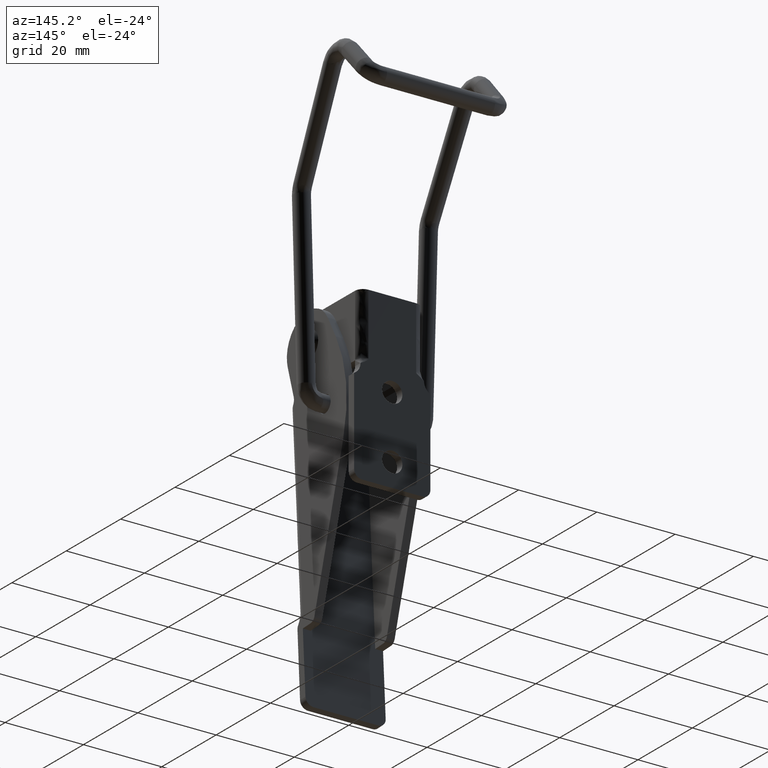
[diagram: clean part render]
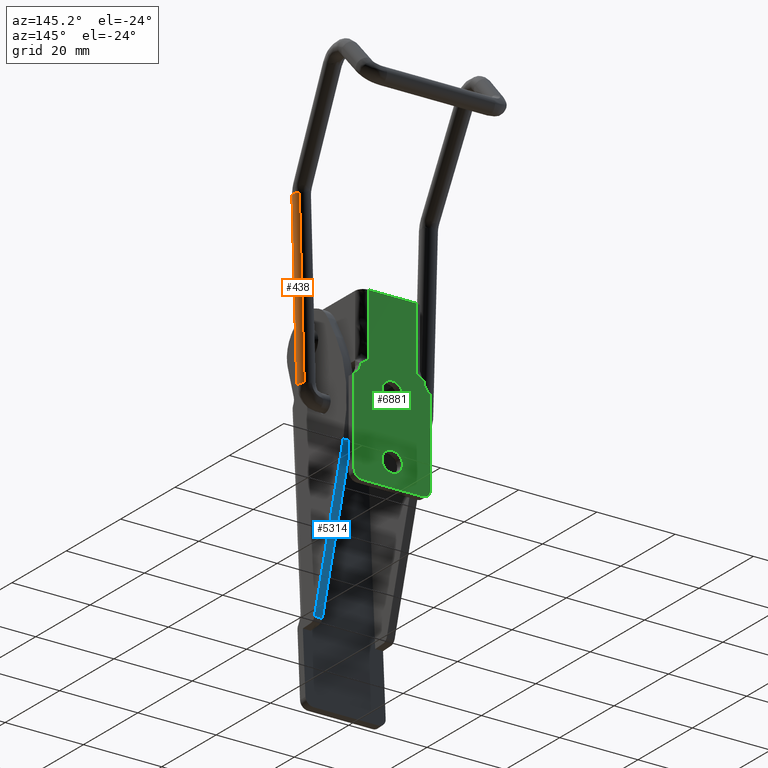
[diagram: same view with three faces highlighted in distinct colors, each labeled with its STEP entity id]
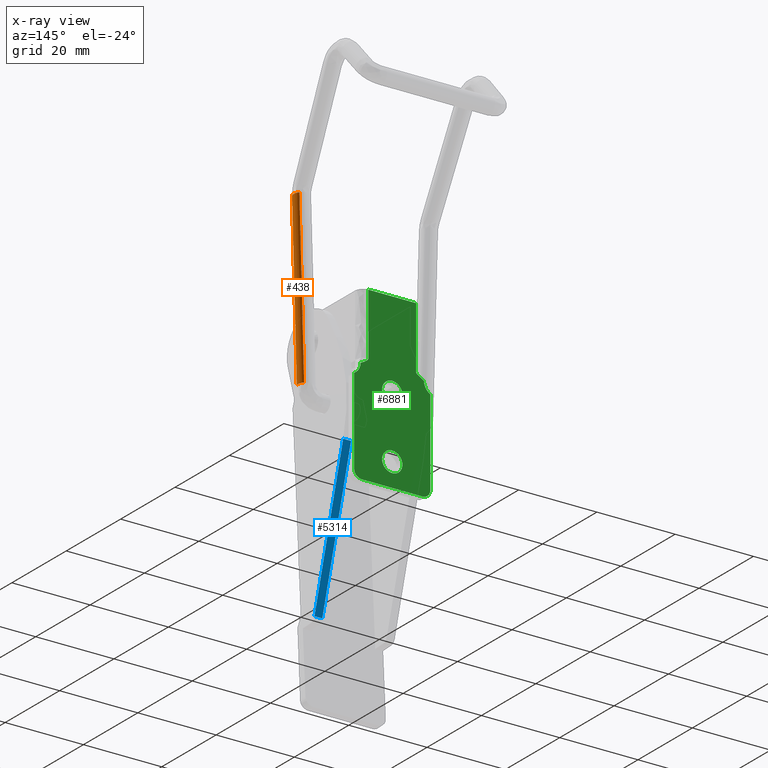
[diagram: x-ray of the same camera — body ghosted, the three highlighted faces saturated]
A machine part, auxiliary view with three faces highlighted in distinct colors.
The next image is the same camera in x-ray (body ghosted, the three faces saturated) — at least one of them is partly hidden behind the body in this view.
Their STEP definitions:

[orange] entity #438 — the highlighted face is a freeform B-spline surface patch.
#265=CARTESIAN_POINT('',(16.509794727899390,4.647320530890150,-12.794704014818301));
#266=VERTEX_POINT('',#265);
#276=CARTESIAN_POINT('',(17.730342286220370,4.647320811614299,30.560491466773581));
#277=VERTEX_POINT('',#276);
#278=CARTESIAN_POINT('',(17.730342286220370,4.647320811614299,30.560491466773581));
#279=CARTESIAN_POINT('',(16.509794727899390,4.647320530890150,-12.794704014818301));
#280=QUASI_UNIFORM_CURVE('',1,(#278,#279),.UNSPECIFIED.,.F.,.U.);
#281=EDGE_CURVE('',#277,#266,#280,.T.);
#321=CARTESIAN_POINT('',(17.692509661454100,7.307180029459488,30.561556540779730));
#322=VERTEX_POINT('',#321);
#332=CARTESIAN_POINT('',(16.471962941733882,7.307180449391282,-12.793638963551690));
#333=VERTEX_POINT('',#332);
#334=CARTESIAN_POINT('',(17.692509661454100,7.307180029459488,30.561556540779730));
#335=CARTESIAN_POINT('',(16.471962941733882,7.307180449391282,-12.793638963551690));
#336=QUASI_UNIFORM_CURVE('',1,(#334,#335),.UNSPECIFIED.,.F.,.U.);
#337=EDGE_CURVE('',#322,#333,#336,.T.);
#376=CARTESIAN_POINT('',(17.723023971583569,7.307180415229979,31.645436411130341));
#377=CARTESIAN_POINT('',(18.925762396597211,5.994101715955565,31.611576590189241));
#378=CARTESIAN_POINT('',(17.760855860629299,4.647320685993249,31.644371357447586));
#379=CARTESIAN_POINT('',(16.440686447903740,7.307180415229979,-13.904615854346760));
#380=CARTESIAN_POINT('',(17.643424872917382,5.994101715955565,-13.938475675287856));
#381=CARTESIAN_POINT('',(16.478518336949474,4.647320685993249,-13.905680908029522));
#389=(BOUNDED_SURFACE()B_SPLINE_SURFACE(2,1,((#376,#379),(#377,#380),(#378,#381)),.UNSPECIFIED.,.F.,.F.,.U.)B_SPLINE_SURFACE_WITH_KNOTS((3,3),(2,2),(0.0,3.045267912687113),(0.0,45.568099048702187),.UNSPECIFIED.)GEOMETRIC_REPRESENTATION_ITEM()RATIONAL_B_SPLINE_SURFACE(((1.0,1.0),(0.730538238691624,0.730538238691624),(0.956886118190660,0.956886118190660)))REPRESENTATION_ITEM('')SURFACE());
#390=CARTESIAN_POINT('',(16.997200202101990,5.955999999998631,-12.808425586992520));
#391=VERTEX_POINT('',#390);
#392=CARTESIAN_POINT('',(16.509794727899390,4.647320530890150,-12.794704014818301));
#393=CARTESIAN_POINT('',(16.694817788622331,4.860640249849205,-12.799912834258510));
#394=CARTESIAN_POINT('',(16.927835161842911,5.287273870870949,-12.806472802811889));
#395=CARTESIAN_POINT('',(16.997262726879129,5.762813143985635,-12.808427346965980));
#396=CARTESIAN_POINT('',(16.997200202101990,5.955999999998631,-12.808425586992520));
#397=B_SPLINE_CURVE_WITH_KNOTS('',3,(#392,#393,#394,#395,#396),.UNSPECIFIED.,.F.,.U.,(4,1,4),(0.000000054343710,0.847068776800026,1.426647840448905),.UNSPECIFIED.);
#398=EDGE_CURVE('',#266,#391,#397,.T.);
#399=ORIENTED_EDGE('',*,*,#398,.T.);
#400=CARTESIAN_POINT('',(16.997200202101990,5.955999999998631,-12.808425586992520));
#401=CARTESIAN_POINT('',(16.997485135419801,6.218745615721096,-12.808433607971351));
#402=CARTESIAN_POINT('',(16.898281266147400,6.712997775263919,-12.805640792937460));
#403=CARTESIAN_POINT('',(16.628642231258318,7.136368932709130,-12.798049841413960));
#404=CARTESIAN_POINT('',(16.471962941733882,7.307180449391282,-12.793638963551690));
#405=B_SPLINE_CURVE_WITH_KNOTS('',3,(#400,#401,#402,#403,#404),.UNSPECIFIED.,.F.,.U.,(4,1,4),(0.000000066028640,0.788122806032528,1.483563117244807),.UNSPECIFIED.);
#406=EDGE_CURVE('',#391,#333,#405,.T.);
#407=ORIENTED_EDGE('',*,*,#406,.T.);
#408=ORIENTED_EDGE('',*,*,#337,.F.);
#409=CARTESIAN_POINT('',(18.217747517759520,5.955999999998660,30.546769901059829));
#410=VERTEX_POINT('',#409);
#411=CARTESIAN_POINT('',(18.217747517759520,5.955999999998660,30.546769901059829));
#412=CARTESIAN_POINT('',(18.217811127245380,6.156892329705192,30.546768110308179));
#413=CARTESIAN_POINT('',(18.142706284255741,6.651403481221308,30.548882482380161));
#414=CARTESIAN_POINT('',(17.891189467385910,7.090941664800647,30.555963252568191));
#415=CARTESIAN_POINT('',(17.692509661454100,7.307180029459488,30.561556540779730));
#416=B_SPLINE_CURVE_WITH_KNOTS('',3,(#411,#412,#413,#414,#415),.UNSPECIFIED.,.F.,.U.,(4,1,4),(0.000000065999771,0.602701375701877,1.483562942162717),.UNSPECIFIED.);
#417=EDGE_CURVE('',#410,#322,#416,.T.);
#418=ORIENTED_EDGE('',*,*,#417,.F.);
#419=CARTESIAN_POINT('',(18.043750767621798,5.139933896677237,30.551668305806270));
#420=VERTEX_POINT('',#419);
#421=CARTESIAN_POINT('',(18.043750767621798,5.139933896677237,30.551668305806270));
#422=CARTESIAN_POINT('',(18.158206161004479,5.395702693098189,30.548446125841650));
#423=CARTESIAN_POINT('',(18.217996809580828,5.675754599638357,30.546762882927322));
#424=CARTESIAN_POINT('',(18.217747517759520,5.955999999998660,30.546769901059829));
#425=B_SPLINE_CURVE_WITH_KNOTS('',3,(#421,#422,#423,#424),.UNSPECIFIED.,.F.,.U.,(4,4),(0.000000025153593,0.840621292462146),.UNSPECIFIED.);
#426=EDGE_CURVE('',#420,#410,#425,.T.);
#427=ORIENTED_EDGE('',*,*,#426,.F.);
#428=CARTESIAN_POINT('',(17.730342286220370,4.647320811614299,30.560491466773581));
#429=CARTESIAN_POINT('',(17.858144844535062,4.795013813910116,30.556893534297121));
#430=CARTESIAN_POINT('',(17.964128186463331,4.961563310391812,30.553909862376269));
#431=CARTESIAN_POINT('',(18.043750767621798,5.139933896677237,30.551668305806270));
#432=B_SPLINE_CURVE_WITH_KNOTS('',3,(#428,#429,#430,#431),.UNSPECIFIED.,.F.,.U.,(4,4),(6.360703E-009,0.586028995988566),.UNSPECIFIED.);
#433=EDGE_CURVE('',#277,#420,#432,.T.);
#434=ORIENTED_EDGE('',*,*,#433,.F.);
#435=ORIENTED_EDGE('',*,*,#281,.T.);
#436=EDGE_LOOP('',(#399,#407,#408,#418,#427,#434,#435));
#437=FACE_OUTER_BOUND('',#436,.T.);
#438=ADVANCED_FACE('',(#437),#389,.T.);

[blue] entity #5314 — the highlighted face is a freeform B-spline surface patch.
#4857=CARTESIAN_POINT('',(8.250000000000000,12.716136963234201,-26.090234091220299));
#4858=VERTEX_POINT('',#4857);
#4871=CARTESIAN_POINT('',(8.250000000000000,2.154824201277075,-62.991602269865787));
#4872=VERTEX_POINT('',#4871);
#4873=CARTESIAN_POINT('',(8.250000000000000,12.716136963234201,-26.090234091220299));
#4874=CARTESIAN_POINT('',(8.250000000000000,2.154824201277075,-62.991602269865787));
#4875=QUASI_UNIFORM_CURVE('',1,(#4873,#4874),.UNSPECIFIED.,.F.,.U.);
#4876=EDGE_CURVE('',#4858,#4872,#4875,.T.);
#5099=CARTESIAN_POINT('',(10.250000000000000,2.154824201277075,-62.991602269865787));
#5100=VERTEX_POINT('',#5099);
#5111=CARTESIAN_POINT('',(10.250000000000000,12.716136963234201,-26.090234091220299));
#5112=VERTEX_POINT('',#5111);
#5113=CARTESIAN_POINT('',(10.250000000000000,12.716136963234201,-26.090234091220299));
#5114=CARTESIAN_POINT('',(10.250000000000000,2.154824201277075,-62.991602269865787));
#5115=QUASI_UNIFORM_CURVE('',1,(#5113,#5114),.UNSPECIFIED.,.F.,.U.);
#5116=EDGE_CURVE('',#5112,#5100,#5115,.T.);
#5290=CARTESIAN_POINT('',(10.250000000000000,2.154824201277075,-62.991602269865787));
#5291=CARTESIAN_POINT('',(8.250000000000000,2.154824201277075,-62.991602269865787));
#5292=QUASI_UNIFORM_CURVE('',1,(#5290,#5291),.UNSPECIFIED.,.F.,.U.);
#5293=EDGE_CURVE('',#5100,#4872,#5292,.T.);
#5299=CARTESIAN_POINT('',(8.150100003876389,1.627286191309386,-64.834827139047732));
#5300=CARTESIAN_POINT('',(8.150100003876389,13.243674028946950,-24.247012521277771));
#5301=CARTESIAN_POINT('',(10.349900049767790,1.627286191309386,-64.834827139047732));
#5302=CARTESIAN_POINT('',(10.349900049767790,13.243674028946950,-24.247012521277771));
#5303=B_SPLINE_SURFACE_WITH_KNOTS('',1,1,((#5299,#5301),(#5300,#5302)),.UNSPECIFIED.,.F.,.F.,.U.,(2,2),(2,2),(0.0,42.217427229058792),(0.0,2.199800045891404),.UNSPECIFIED.);
#5304=ORIENTED_EDGE('',*,*,#4876,.F.);
#5305=CARTESIAN_POINT('',(10.250000000000000,12.716136963234201,-26.090234091220299));
#5306=CARTESIAN_POINT('',(8.250000000000000,12.716136963234201,-26.090234091220299));
#5307=QUASI_UNIFORM_CURVE('',1,(#5305,#5306),.UNSPECIFIED.,.F.,.U.);
#5308=EDGE_CURVE('',#5112,#4858,#5307,.T.);
#5309=ORIENTED_EDGE('',*,*,#5308,.F.);
#5310=ORIENTED_EDGE('',*,*,#5116,.T.);
#5311=ORIENTED_EDGE('',*,*,#5293,.T.);
#5312=EDGE_LOOP('',(#5304,#5309,#5310,#5311));
#5313=FACE_OUTER_BOUND('',#5312,.T.);
#5314=ADVANCED_FACE('',(#5313),#5303,.T.);

[green] entity #6881 — the highlighted face is a freeform B-spline surface patch.
#6021=CARTESIAN_POINT('',(0.0,16.0,-11.400000000000000));
#6022=VERTEX_POINT('',#6021);
#6023=CARTESIAN_POINT('',(-1.863292082354252,15.999999999963590,-12.186677256007460));
#6024=VERTEX_POINT('',#6023);
#6025=CARTESIAN_POINT('',(0.0,16.0,-11.400000000000000));
#6026=CARTESIAN_POINT('',(-0.367941319150525,15.999999999992809,-11.399492728401169));
#6027=CARTESIAN_POINT('',(-1.059928778730854,15.999999999979300,-11.549619904516771));
#6028=CARTESIAN_POINT('',(-1.637075674365317,15.999999999968001,-11.953841488596950));
#6029=CARTESIAN_POINT('',(-1.863292082354252,15.999999999963590,-12.186677256007460));
#6030=B_SPLINE_CURVE_WITH_KNOTS('',3,(#6025,#6026,#6027,#6028,#6029),.UNSPECIFIED.,.F.,.U.,(4,1,4),(0.000000070766762,1.103614802133821,2.077423678142815),.UNSPECIFIED.);
#6031=EDGE_CURVE('',#6022,#6024,#6030,.T.);
#6033=CARTESIAN_POINT('',(2.599999999998803,16.0,-13.999997505267141));
#6034=VERTEX_POINT('',#6033);
#6035=CARTESIAN_POINT('',(2.599999999998803,16.0,-13.999997505267141));
#6036=CARTESIAN_POINT('',(2.600118074876720,15.999999999999989,-13.744735147118909));
#6037=CARTESIAN_POINT('',(2.533632415311678,16.000000000000021,-13.298131382723220));
#6038=CARTESIAN_POINT('',(2.230303222298507,16.000000000000011,-12.589835256861990));
#6039=CARTESIAN_POINT('',(1.770706555027725,15.999999999999989,-12.043646003875160));
#6040=CARTESIAN_POINT('',(1.232332315636380,16.0,-11.693710011439320));
#6041=CARTESIAN_POINT('',(0.680595176224685,16.000000000000011,-11.465099799648319));
#6042=CARTESIAN_POINT('',(0.276544971297558,15.999999999999980,-11.399850671934210));
#6043=CARTESIAN_POINT('',(0.0,16.0,-11.400000000000000));
#6044=B_SPLINE_CURVE_WITH_KNOTS('',3,(#6035,#6036,#6037,#6038,#6039,#6040,#6041,#6042,#6043),.UNSPECIFIED.,.F.,.U.,(4,1,1,1,1,1,4),(0.000000225905183,0.765769840458974,1.340121590204038,2.297310064581266,2.871671922412920,3.254585484972335,4.084171529176208),.UNSPECIFIED.);
#6045=EDGE_CURVE('',#6034,#6022,#6044,.T.);
#6047=CARTESIAN_POINT('',(0.0,16.0,-16.600000000000001));
#6048=VERTEX_POINT('',#6047);
#6049=CARTESIAN_POINT('',(0.0,16.0,-16.600000000000001));
#6050=CARTESIAN_POINT('',(0.255261186141787,16.000000000000011,-16.600108173445111));
#6051=CARTESIAN_POINT('',(0.765733101275605,16.0,-16.524239462607650));
#6052=CARTESIAN_POINT('',(1.407186484100455,16.000000000000011,-16.220886281028420));
#6053=CARTESIAN_POINT('',(1.865649041730928,15.999999999999959,-15.834996933055599));
#6054=CARTESIAN_POINT('',(2.199154626694479,16.0,-15.418283983607850));
#6055=CARTESIAN_POINT('',(2.504795129008538,16.000000000000082,-14.829416955779861));
#6056=CARTESIAN_POINT('',(2.600284592956574,15.999999999999890,-14.319109708965140));
#6057=CARTESIAN_POINT('',(2.599999999998803,16.0,-13.999997505267141));
#6058=B_SPLINE_CURVE_WITH_KNOTS('',3,(#6049,#6050,#6051,#6052,#6053,#6054,#6055,#6056,#6057),.UNSPECIFIED.,.F.,.U.,(4,1,1,1,1,1,4),(0.000000222490631,0.765770364679256,1.531594358759263,2.105872248835109,2.552579556360094,3.126947872563255,4.084174341391743),.UNSPECIFIED.);
#6059=EDGE_CURVE('',#6048,#6034,#6058,.T.);
#6061=CARTESIAN_POINT('',(-1.916921610258040,16.000000000034110,-15.756534876094570));
#6062=VERTEX_POINT('',#6061);
#6063=CARTESIAN_POINT('',(-1.916921610258040,16.000000000034110,-15.756534876094570));
#6064=CARTESIAN_POINT('',(-1.689610616523210,16.000000000030109,-16.005154430978369));
#6065=CARTESIAN_POINT('',(-1.302462461254564,16.000000000023132,-16.289531627947142));
#6066=CARTESIAN_POINT('',(-0.628622490213775,16.000000000011241,-16.545159547883870));
#6067=CARTESIAN_POINT('',(-0.247001009635600,16.000000000004341,-16.600112303489649));
#6068=CARTESIAN_POINT('',(0.0,16.0,-16.600000000000001));
#6069=B_SPLINE_CURVE_WITH_KNOTS('',3,(#6063,#6064,#6065,#6066,#6067,#6068),.UNSPECIFIED.,.F.,.U.,(4,1,1,4),(0.000000059354858,1.010421767200837,1.414564382715485,2.155542261296038),.UNSPECIFIED.);
#6070=EDGE_CURVE('',#6062,#6048,#6069,.T.);
#6149=CARTESIAN_POINT('',(-2.599999999998803,16.0,-14.000002494732890));
#6150=VERTEX_POINT('',#6149);
#6151=CARTESIAN_POINT('',(-1.863292082354252,15.999999999963590,-12.186677256007460));
#6152=CARTESIAN_POINT('',(-2.052921634006627,15.999999999967500,-12.381347136871661));
#6153=CARTESIAN_POINT('',(-2.309132975920708,15.999999999974770,-12.744399535558671));
#6154=CARTESIAN_POINT('',(-2.546941551383142,15.999999999987420,-13.372952907986960));
#6155=CARTESIAN_POINT('',(-2.600084415741846,15.999999999995380,-13.770056356247739));
#6156=CARTESIAN_POINT('',(-2.599999999998803,16.0,-14.000002494732890));
#6157=B_SPLINE_CURVE_WITH_KNOTS('',3,(#6151,#6152,#6153,#6154,#6155,#6156),.UNSPECIFIED.,.F.,.U.,(4,1,1,4),(0.000000059649642,0.815259724472347,1.316928201889315,2.006751353417502),.UNSPECIFIED.);
#6158=EDGE_CURVE('',#6024,#6150,#6157,.T.);
#6181=CARTESIAN_POINT('',(-2.599999999998803,16.0,-14.000002494732890));
#6182=CARTESIAN_POINT('',(-2.600226065375181,16.000000000005802,-14.301382255301959));
#6183=CARTESIAN_POINT('',(-2.486900350476761,16.000000000018439,-14.944060903997890));
#6184=CARTESIAN_POINT('',(-2.147963791235973,16.000000000029178,-15.504956197174099));
#6185=CARTESIAN_POINT('',(-1.916921610258040,16.000000000034110,-15.756534876094570));
#6186=B_SPLINE_CURVE_WITH_KNOTS('',3,(#6181,#6182,#6183,#6184,#6185),.UNSPECIFIED.,.F.,.U.,(4,1,4),(0.000000065977171,0.904064395187127,1.928629614510035),.UNSPECIFIED.);
#6187=EDGE_CURVE('',#6150,#6062,#6186,.T.);
#6218=CARTESIAN_POINT('',(0.0,16.0,-27.399999999999999));
#6219=VERTEX_POINT('',#6218);
#6220=CARTESIAN_POINT('',(-1.863292082354253,15.999999999963590,-28.186677256007460));
#6221=VERTEX_POINT('',#6220);
#6222=CARTESIAN_POINT('',(0.0,16.0,-27.399999999999999));
#6223=CARTESIAN_POINT('',(-0.324639040687594,15.999999999993671,-27.399695696798329));
#6224=CARTESIAN_POINT('',(-1.016827318717115,15.999999999980121,-27.531481133912830));
#6225=CARTESIAN_POINT('',(-1.607046281505769,15.999999999968610,-27.922618948879709));
#6226=CARTESIAN_POINT('',(-1.863292082354253,15.999999999963590,-28.186677256007460));
#6227=B_SPLINE_CURVE_WITH_KNOTS('',3,(#6222,#6223,#6224,#6225,#6226),.UNSPECIFIED.,.F.,.U.,(4,1,4),(0.000000070766677,0.973808946776108,2.077423678142820),.UNSPECIFIED.);
#6228=EDGE_CURVE('',#6219,#6221,#6227,.T.);
#6230=CARTESIAN_POINT('',(2.599999999998803,16.0,-29.999997505267139));
#6231=VERTEX_POINT('',#6230);
#6232=CARTESIAN_POINT('',(2.599999999998803,16.0,-29.999997505267139));
#6233=CARTESIAN_POINT('',(2.600276469574768,16.000000000000021,-29.680874469584818));
#6234=CARTESIAN_POINT('',(2.512721940039311,15.999999999999989,-29.213149023835658));
#6235=CARTESIAN_POINT('',(2.203683261018797,16.000000000000011,-28.579953519038039));
#6236=CARTESIAN_POINT('',(1.841536675432757,16.000000000000039,-28.127492926905781));
#6237=CARTESIAN_POINT('',(1.296519277207960,15.999999999999940,-27.712757165463479));
#6238=CARTESIAN_POINT('',(0.680691735149581,16.000000000000110,-27.457664167464699));
#6239=CARTESIAN_POINT('',(0.212704442734100,15.999999999999901,-27.399970272375661));
#6240=CARTESIAN_POINT('',(0.0,16.0,-27.399999999999999));
#6241=B_SPLINE_CURVE_WITH_KNOTS('',3,(#6232,#6233,#6234,#6235,#6236,#6237,#6238,#6239,#6240),.UNSPECIFIED.,.F.,.U.,(4,1,1,1,1,1,4),(0.000000225904554,0.957227126624389,1.403949289608428,2.105870803594665,2.680224839214373,3.446032567117936,4.084171529176224),.UNSPECIFIED.);
#6242=EDGE_CURVE('',#6231,#6219,#6241,.T.);
#6244=CARTESIAN_POINT('',(0.0,16.0,-32.599999999999987));
#6245=VERTEX_POINT('',#6244);
#6246=CARTESIAN_POINT('',(0.0,16.0,-32.599999999999987));
#6247=CARTESIAN_POINT('',(0.212711220353843,15.999999999999980,-32.600044219375476));
#6248=CARTESIAN_POINT('',(0.659403761079881,16.000000000000021,-32.544912919636019));
#6249=CARTESIAN_POINT('',(1.237404397467780,16.0,-32.313777416991911));
#6250=CARTESIAN_POINT('',(1.726693952318728,16.0,-31.969123824958260));
#6251=CARTESIAN_POINT('',(2.076254603887289,15.999999999999909,-31.592808770413590));
#6252=CARTESIAN_POINT('',(2.345041812715242,16.000000000000210,-31.156587654855741));
#6253=CARTESIAN_POINT('',(2.545054965112611,15.999999999999581,-30.638096528657179));
#6254=CARTESIAN_POINT('',(2.600085207174175,16.000000000000419,-30.233992559602761));
#6255=CARTESIAN_POINT('',(2.599999999998803,16.0,-29.999997505267139));
#6256=B_SPLINE_CURVE_WITH_KNOTS('',3,(#6246,#6247,#6248,#6249,#6250,#6251,#6252,#6253,#6254,#6255),.UNSPECIFIED.,.F.,.U.,(4,1,1,1,1,1,1,4),(0.000000222491401,0.638146177787613,1.340122511664661,1.850688000295570,2.424969606976797,2.871673900947134,3.382208397628389,4.084174341391741),.UNSPECIFIED.);
#6257=EDGE_CURVE('',#6245,#6231,#6256,.T.);
#6259=CARTESIAN_POINT('',(-1.916921610258037,16.000000000034110,-31.756534876094570));
#6260=VERTEX_POINT('',#6259);
#6261=CARTESIAN_POINT('',(-1.916921610258037,16.000000000034110,-31.756534876094570));
#6262=CARTESIAN_POINT('',(-1.689611788624017,16.000000000030042,-32.005147861508462));
#6263=CARTESIAN_POINT('',(-1.265585748154585,16.000000000022609,-32.316636888601032));
#6264=CARTESIAN_POINT('',(-0.583747776177599,16.000000000010260,-32.555261562060551));
#6265=CARTESIAN_POINT('',(-0.202081715948023,16.000000000003681,-32.600043764373488));
#6266=CARTESIAN_POINT('',(0.0,16.0,-32.599999999999987));
#6267=B_SPLINE_CURVE_WITH_KNOTS('',3,(#6261,#6262,#6263,#6264,#6265,#6266),.UNSPECIFIED.,.F.,.U.,(4,1,1,4),(0.000000059355129,1.010421767200922,1.549294811758308,2.155542261296034),.UNSPECIFIED.);
#6268=EDGE_CURVE('',#6260,#6245,#6267,.T.);
#6347=CARTESIAN_POINT('',(-2.599999999998803,16.0,-30.000002494732879));
#6348=VERTEX_POINT('',#6347);
#6349=CARTESIAN_POINT('',(-1.863292082354253,15.999999999963590,-28.186677256007460));
#6350=CARTESIAN_POINT('',(-2.111464893129738,15.999999999968701,-28.441096832813159));
#6351=CARTESIAN_POINT('',(-2.477470863517949,15.999999999980281,-29.017714201919709));
#6352=CARTESIAN_POINT('',(-2.600254922943648,15.999999999993721,-29.686417335038058));
#6353=CARTESIAN_POINT('',(-2.599999999998803,16.0,-30.000002494732879));
#6354=B_SPLINE_CURVE_WITH_KNOTS('',3,(#6349,#6350,#6351,#6352,#6353),.UNSPECIFIED.,.F.,.U.,(4,1,4),(0.000000059649350,1.066071734427776,2.006751353417495),.UNSPECIFIED.);
#6355=EDGE_CURVE('',#6221,#6348,#6354,.T.);
#6377=CARTESIAN_POINT('',(-2.599999999998803,16.0,-30.000002494732879));
#6378=CARTESIAN_POINT('',(-2.600097812078167,16.000000000005070,-30.261169040034769));
#6379=CARTESIAN_POINT('',(-2.502364494647601,16.000000000017550,-30.904011736825058));
#6380=CARTESIAN_POINT('',(-2.175339065916672,16.000000000028670,-31.475445833911380));
#6381=CARTESIAN_POINT('',(-1.916921610258037,16.000000000034110,-31.756534876094570));
#6382=B_SPLINE_CURVE_WITH_KNOTS('',3,(#6377,#6378,#6379,#6380,#6381),.UNSPECIFIED.,.F.,.U.,(4,1,4),(0.000000065977762,0.783518994689767,1.928629614510032),.UNSPECIFIED.);
#6383=EDGE_CURVE('',#6348,#6260,#6382,.T.);
#6417=CARTESIAN_POINT('',(8.099999999999911,16.0,-9.321000000000000));
#6418=VERTEX_POINT('',#6417);
#6431=CARTESIAN_POINT('',(6.099999999999910,16.0,8.0));
#6432=VERTEX_POINT('',#6431);
#6433=CARTESIAN_POINT('',(6.099999999999910,16.0,8.000000000000007));
#6434=CARTESIAN_POINT('',(6.099999999999910,16.0,2.751212121212128));
#6435=CARTESIAN_POINT('',(6.099999999999910,16.0,-2.497575757575752));
#6436=CARTESIAN_POINT('',(6.099999999999910,16.0,-7.746363636363630));
#6437=CARTESIAN_POINT('',(6.099999999999910,16.0,-8.271242424242420));
#6438=CARTESIAN_POINT('',(7.099999999999909,16.0,-8.796121212121211));
#6439=CARTESIAN_POINT('',(8.099999999999911,16.0,-9.321000000000000));
#6440=B_SPLINE_CURVE_WITH_KNOTS('',3,(#6433,#6434,#6435,#6436,#6437,#6438,#6439),.UNSPECIFIED.,.F.,.U.,(4,3,4),(0.666666666666667,0.969696969696970,1.0),.UNSPECIFIED.);
#6441=EDGE_CURVE('',#6432,#6418,#6440,.T.);
#6486=CARTESIAN_POINT('',(-6.100000000000001,16.0,8.0));
#6487=VERTEX_POINT('',#6486);
#6502=CARTESIAN_POINT('',(-8.100000000000000,16.0,-9.321000000000000));
#6503=VERTEX_POINT('',#6502);
#6504=CARTESIAN_POINT('',(-8.100000000000000,16.0,-9.321000000000000));
#6505=CARTESIAN_POINT('',(-7.100000000000001,16.0,-8.796121212121211));
#6506=CARTESIAN_POINT('',(-6.100000000000001,16.0,-8.271242424242420));
#6507=CARTESIAN_POINT('',(-6.100000000000001,16.0,-7.746363636363630));
#6508=CARTESIAN_POINT('',(-6.100000000000001,16.0,-2.497575757575752));
#6509=CARTESIAN_POINT('',(-6.100000000000002,16.0,2.751212121212129));
#6510=CARTESIAN_POINT('',(-6.100000000000002,16.0,8.000000000000011));
#6511=B_SPLINE_CURVE_WITH_KNOTS('',3,(#6504,#6505,#6506,#6507,#6508,#6509,#6510),.UNSPECIFIED.,.F.,.U.,(4,3,4),(0.0,0.030303030303030,0.333333333333333),.UNSPECIFIED.);
#6512=EDGE_CURVE('',#6503,#6487,#6511,.T.);
#6781=CARTESIAN_POINT('',(-10.724024962205389,16.0,10.197799914719470));
#6782=CARTESIAN_POINT('',(10.724025485235980,16.0,10.197799914719470));
#6783=CARTESIAN_POINT('',(-10.724024962205389,16.0,-38.197801094891432));
#6784=CARTESIAN_POINT('',(10.724025485235980,16.0,-38.197801094891432));
#6785=B_SPLINE_SURFACE_WITH_KNOTS('',1,1,((#6781,#6783),(#6782,#6784)),.UNSPECIFIED.,.F.,.F.,.U.,(2,2),(2,2),(0.0,21.448050447441378),(0.0,48.395601009610893),.UNSPECIFIED.);
#6786=CARTESIAN_POINT('',(-9.750000000000171,16.0,-12.000085664923800));
#6787=VERTEX_POINT('',#6786);
#6788=CARTESIAN_POINT('',(-9.750000000000171,16.0,-12.000085664923800));
#6789=CARTESIAN_POINT('',(-9.518892924503298,16.000000000000011,-11.883697314427790));
#6790=CARTESIAN_POINT('',(-9.072686008283718,16.0,-11.580858742119650));
#6791=CARTESIAN_POINT('',(-8.540769227079638,16.000000000000011,-10.958736108178890));
#6792=CARTESIAN_POINT('',(-8.184130691264375,15.999999999999959,-10.183443341774730));
#6793=CARTESIAN_POINT('',(-8.099887192563285,16.000000000000050,-9.614273721116053));
#6794=CARTESIAN_POINT('',(-8.100000000000000,16.0,-9.321000000000000));
#6795=B_SPLINE_CURVE_WITH_KNOTS('',3,(#6788,#6789,#6790,#6791,#6792,#6793,#6794),.UNSPECIFIED.,.F.,.U.,(4,1,1,1,4),(0.000000114448359,0.776281004763938,1.604348058404431,2.432346413536320,3.312134025714054),.UNSPECIFIED.);
#6796=EDGE_CURVE('',#6787,#6503,#6795,.T.);
#6797=ORIENTED_EDGE('',*,*,#6796,.T.);
#6798=ORIENTED_EDGE('',*,*,#6512,.T.);
#6799=CARTESIAN_POINT('',(6.099999999999910,16.0,8.0));
#6800=CARTESIAN_POINT('',(-6.100000000000001,16.0,8.0));
#6801=QUASI_UNIFORM_CURVE('',1,(#6799,#6800),.UNSPECIFIED.,.F.,.U.);
#6802=EDGE_CURVE('',#6432,#6487,#6801,.T.);
#6803=ORIENTED_EDGE('',*,*,#6802,.F.);
#6804=ORIENTED_EDGE('',*,*,#6441,.T.);
#6805=CARTESIAN_POINT('',(9.750000000000000,16.0,-12.000085664923800));
#6806=VERTEX_POINT('',#6805);
#6807=CARTESIAN_POINT('',(8.099999999999911,16.0,-9.321000000000000));
#6808=CARTESIAN_POINT('',(8.099530299359435,16.0,-9.735101702359026));
#6809=CARTESIAN_POINT('',(8.234236941927453,16.0,-10.372940495755509));
#6810=CARTESIAN_POINT('',(8.626791279191336,16.0,-11.048377946111730));
#6811=CARTESIAN_POINT('',(9.076173979186809,15.999999999999970,-11.574165145379720));
#6812=CARTESIAN_POINT('',(9.457161589481169,16.000000000000082,-11.852781325036510));
#6813=CARTESIAN_POINT('',(9.750000000000000,16.0,-12.000085664923800));
#6814=B_SPLINE_CURVE_WITH_KNOTS('',3,(#6807,#6808,#6809,#6810,#6811,#6812,#6813),.UNSPECIFIED.,.F.,.U.,(4,1,1,1,4),(0.000000114447609,1.242056879479332,1.914814261893066,2.328841168037018,3.312134025713957),.UNSPECIFIED.);
#6815=EDGE_CURVE('',#6418,#6806,#6814,.T.);
#6816=ORIENTED_EDGE('',*,*,#6815,.T.);
#6817=CARTESIAN_POINT('',(9.750000000000000,16.0,-34.0));
#6818=VERTEX_POINT('',#6817);
#6819=CARTESIAN_POINT('',(9.750000000000000,16.0,-34.0));
#6820=CARTESIAN_POINT('',(9.750000000000000,16.0,-12.000085664923800));
#6821=QUASI_UNIFORM_CURVE('',1,(#6819,#6820),.UNSPECIFIED.,.F.,.U.);
#6822=EDGE_CURVE('',#6818,#6806,#6821,.T.);
#6823=ORIENTED_EDGE('',*,*,#6822,.F.);
#6824=CARTESIAN_POINT('',(7.750000000000000,16.0,-36.0));
#6825=VERTEX_POINT('',#6824);
#6826=CARTESIAN_POINT('',(7.750000000000000,16.0,-36.0));
#6827=CARTESIAN_POINT('',(7.946351897636281,16.000000000000011,-36.000081035673027));
#6828=CARTESIAN_POINT('',(8.289918863235330,16.000000000000011,-35.948981531017971));
#6829=CARTESIAN_POINT('',(8.758989589690092,15.999999999999950,-35.747904141506723));
#6830=CARTESIAN_POINT('',(9.143011934179295,16.000000000000121,-35.463117213144102));
#6831=CARTESIAN_POINT('',(9.446294307359310,15.999999999999860,-35.093529715677491));
#6832=CARTESIAN_POINT('',(9.684586479845297,16.000000000000060,-34.605318465956827));
#6833=CARTESIAN_POINT('',(9.750172670594475,15.999999999999989,-34.229099708619202));
#6834=CARTESIAN_POINT('',(9.750000000000000,16.0,-34.0));
#6835=B_SPLINE_CURVE_WITH_KNOTS('',3,(#6826,#6827,#6828,#6829,#6830,#6831,#6832,#6833,#6834),.UNSPECIFIED.,.F.,.U.,(4,1,1,1,1,1,4),(0.000000287145164,0.589049661665388,1.030861965920980,1.521787399406754,2.012607652304844,2.454432787567200,3.141671488698328),.UNSPECIFIED.);
#6836=EDGE_CURVE('',#6825,#6818,#6835,.T.);
#6837=ORIENTED_EDGE('',*,*,#6836,.F.);
#6838=CARTESIAN_POINT('',(-7.750000000000170,16.0,-36.0));
#6839=VERTEX_POINT('',#6838);
#6840=CARTESIAN_POINT('',(-7.750000000000170,16.0,-36.0));
#6841=CARTESIAN_POINT('',(7.750000000000000,16.0,-36.0));
#6842=QUASI_UNIFORM_CURVE('',1,(#6840,#6841),.UNSPECIFIED.,.F.,.U.);
#6843=EDGE_CURVE('',#6839,#6825,#6842,.T.);
#6844=ORIENTED_EDGE('',*,*,#6843,.F.);
#6845=CARTESIAN_POINT('',(-9.750000000000171,16.0,-34.0));
#6846=VERTEX_POINT('',#6845);
#6847=CARTESIAN_POINT('',(-9.750000000000171,16.0,-34.0));
#6848=CARTESIAN_POINT('',(-9.750079602878060,16.000000000000011,-34.196352275710566));
#6849=CARTESIAN_POINT('',(-9.698982965946767,15.999999999999989,-34.539915227011221));
#6850=CARTESIAN_POINT('',(-9.484950507914512,16.0,-35.039228440659862));
#6851=CARTESIAN_POINT('',(-9.118758918695962,16.0,-35.508836328289760));
#6852=CARTESIAN_POINT('',(-8.518882621668226,16.0,-35.898962384043919));
#6853=CARTESIAN_POINT('',(-8.011842246264632,16.0,-36.000281573309323));
#6854=CARTESIAN_POINT('',(-7.750000000000170,16.0,-36.0));
#6855=B_SPLINE_CURVE_WITH_KNOTS('',3,(#6847,#6848,#6849,#6850,#6851,#6852,#6853,#6854),.UNSPECIFIED.,.F.,.U.,(4,1,1,1,1,4),(0.000000287143590,0.589049661664303,1.030861965920176,1.619883375362168,2.356253692939252,3.141671488698338),.UNSPECIFIED.);
#6856=EDGE_CURVE('',#6846,#6839,#6855,.T.);
#6857=ORIENTED_EDGE('',*,*,#6856,.F.);
#6858=CARTESIAN_POINT('',(-9.750000000000171,16.0,-12.000085664923800));
#6859=CARTESIAN_POINT('',(-9.750000000000171,16.0,-34.0));
#6860=QUASI_UNIFORM_CURVE('',1,(#6858,#6859),.UNSPECIFIED.,.F.,.U.);
#6861=EDGE_CURVE('',#6787,#6846,#6860,.T.);
#6862=ORIENTED_EDGE('',*,*,#6861,.F.);
#6863=EDGE_LOOP('',(#6797,#6798,#6803,#6804,#6816,#6823,#6837,#6844,#6857,#6862));
#6864=FACE_OUTER_BOUND('',#6863,.T.);
#6865=ORIENTED_EDGE('',*,*,#6257,.T.);
#6866=ORIENTED_EDGE('',*,*,#6242,.T.);
#6867=ORIENTED_EDGE('',*,*,#6228,.T.);
#6868=ORIENTED_EDGE('',*,*,#6355,.T.);
#6869=ORIENTED_EDGE('',*,*,#6383,.T.);
#6870=ORIENTED_EDGE('',*,*,#6268,.T.);
#6871=EDGE_LOOP('',(#6865,#6866,#6867,#6868,#6869,#6870));
#6872=FACE_BOUND('',#6871,.T.);
#6873=ORIENTED_EDGE('',*,*,#6059,.T.);
#6874=ORIENTED_EDGE('',*,*,#6045,.T.);
#6875=ORIENTED_EDGE('',*,*,#6031,.T.);
#6876=ORIENTED_EDGE('',*,*,#6158,.T.);
#6877=ORIENTED_EDGE('',*,*,#6187,.T.);
#6878=ORIENTED_EDGE('',*,*,#6070,.T.);
#6879=EDGE_LOOP('',(#6873,#6874,#6875,#6876,#6877,#6878));
#6880=FACE_BOUND('',#6879,.T.);
#6881=ADVANCED_FACE('',(#6864,#6872,#6880),#6785,.T.);